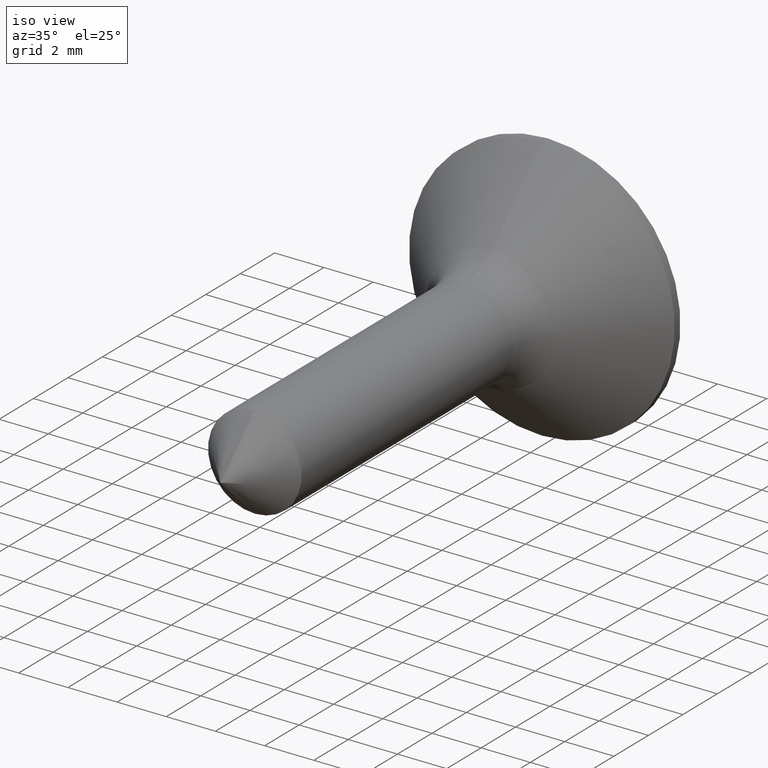
[diagram: clean part render]
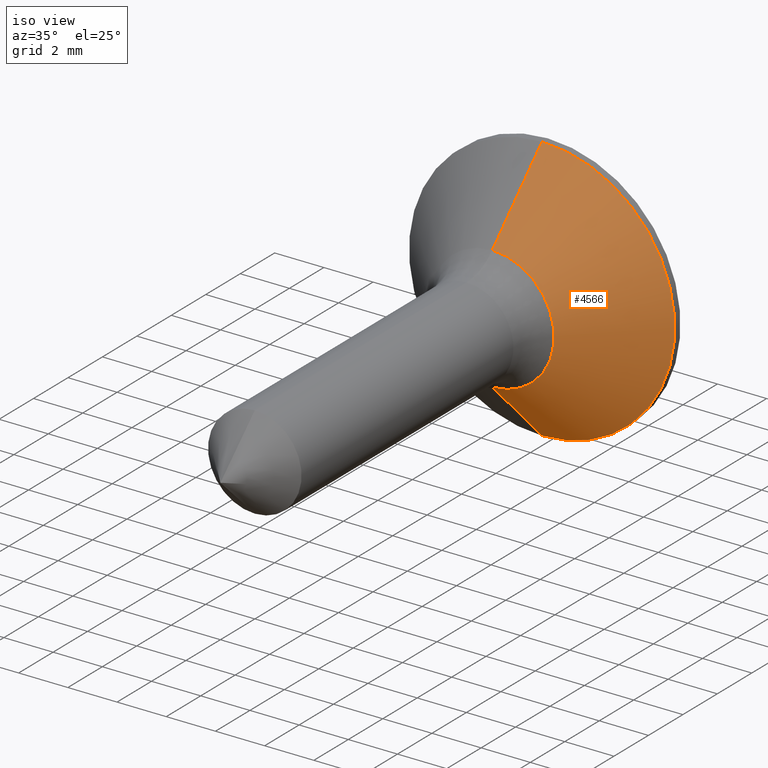
[diagram: same view with one face highlighted and labeled with its STEP entity id]
A machine part, iso view. The second image highlights one B-rep face of the part: STEP entity #4566.
In plain terms, the highlighted conical surface has half-angle 45 deg.
Its self-contained STEP definition (entity closure, byte-faithful):
#685 = ORIENTED_EDGE ( 'NONE', *, *, #6185, .T. ) ;
#1318 = CONICAL_SURFACE ( 'NONE', #15594, 2.515075759508248243, 0.7853981633974440602 ) ;
#1388 = EDGE_CURVE ( 'NONE', #2922, #4695, #17032, .T. ) ;
#1597 = EDGE_LOOP ( 'NONE', ( #14838, #685, #12613, #15327 ) ) ;
#2922 = VERTEX_POINT ( 'NONE', #16892 ) ;
#3653 = VECTOR ( 'NONE', #12479, 1000.000000000000114 ) ;
#4566 = ADVANCED_FACE ( 'NONE', ( #5479 ), #1318, .T. ) ;
#4695 = VERTEX_POINT ( 'NONE', #14114 ) ;
#4781 = VERTEX_POINT ( 'NONE', #7779 ) ;
#4940 = EDGE_CURVE ( 'NONE', #4781, #7999, #16252, .T. ) ;
#5479 = FACE_OUTER_BOUND ( 'NONE', #1597, .T. ) ;
#6185 = EDGE_CURVE ( 'NONE', #4781, #2922, #16213, .T. ) ;
#6670 = CARTESIAN_POINT ( 'NONE',  ( 0.000000000000000000, 15.78507575950822250, 0.000000000000000000 ) ) ;
#6755 = CARTESIAN_POINT ( 'NONE',  ( 0.000000000000000000, 18.66999999999999815, 0.000000000000000000 ) ) ;
#7779 = CARTESIAN_POINT ( 'NONE',  ( 0.000000000000000000, 15.78507575950822250, -2.515075759508246467 ) ) ;
#7999 = VERTEX_POINT ( 'NONE', #9883 ) ;
#8426 = DIRECTION ( 'NONE',  ( 0.000000000000000000, 0.000000000000000000, 1.000000000000000000 ) ) ;
#8594 = CARTESIAN_POINT ( 'NONE',  ( 3.080079478494874439E-16, 15.78507575950822250, -2.515075759508248243 ) ) ;
#9883 = CARTESIAN_POINT ( 'NONE',  ( 3.080079478494871973E-16, 15.78507575950822250, 2.515075759508246467 ) ) ;
#10664 = AXIS2_PLACEMENT_3D ( 'NONE', #6755, #12087, #13485 ) ;
#11096 = LINE ( 'NONE', #11207, #3653 ) ;
#11143 = AXIS2_PLACEMENT_3D ( 'NONE', #6670, #16116, #14661 ) ;
#11207 = CARTESIAN_POINT ( 'NONE',  ( 0.000000000000000000, 15.78507575950822250, 2.515075759508248243 ) ) ;
#12087 = DIRECTION ( 'NONE',  ( -0.000000000000000000, -1.000000000000000000, -0.000000000000000000 ) ) ;
#12131 = EDGE_CURVE ( 'NONE', #7999, #4695, #11096, .T. ) ;
#12439 = DIRECTION ( 'NONE',  ( 0.000000000000000000, 1.000000000000000000, 0.000000000000000000 ) ) ;
#12479 = DIRECTION ( 'NONE',  ( 0.000000000000000000, 0.7071067811865505703, 0.7071067811865444641 ) ) ;
#12613 = ORIENTED_EDGE ( 'NONE', *, *, #1388, .T. ) ;
#13485 = DIRECTION ( 'NONE',  ( 0.000000000000000000, 0.000000000000000000, -1.000000000000000000 ) ) ;
#13775 = CARTESIAN_POINT ( 'NONE',  ( 0.000000000000000000, 15.78507575950822250, 0.000000000000000000 ) ) ;
#14114 = CARTESIAN_POINT ( 'NONE',  ( 0.000000000000000000, 18.66999999999999815, 5.400000000000000355 ) ) ;
#14388 = DIRECTION ( 'NONE',  ( 8.659560562354897113E-17, 0.7071067811865505703, -0.7071067811865444641 ) ) ;
#14661 = DIRECTION ( 'NONE',  ( 0.000000000000000000, 0.000000000000000000, -1.000000000000000000 ) ) ;
#14838 = ORIENTED_EDGE ( 'NONE', *, *, #4940, .F. ) ;
#15327 = ORIENTED_EDGE ( 'NONE', *, *, #12131, .F. ) ;
#15594 = AXIS2_PLACEMENT_3D ( 'NONE', #13775, #12439, #8426 ) ;
#16116 = DIRECTION ( 'NONE',  ( -0.000000000000000000, -1.000000000000000000, -0.000000000000000000 ) ) ;
#16213 = LINE ( 'NONE', #8594, #16437 ) ;
#16252 = CIRCLE ( 'NONE', #11143, 2.515075759508248243 ) ;
#16437 = VECTOR ( 'NONE', #14388, 1000.000000000000114 ) ;
#16892 = CARTESIAN_POINT ( 'NONE',  ( 6.613092715395708453E-16, 18.66999999999999815, -5.400000000000000355 ) ) ;
#17032 = CIRCLE ( 'NONE', #10664, 5.400000000000000355 ) ;